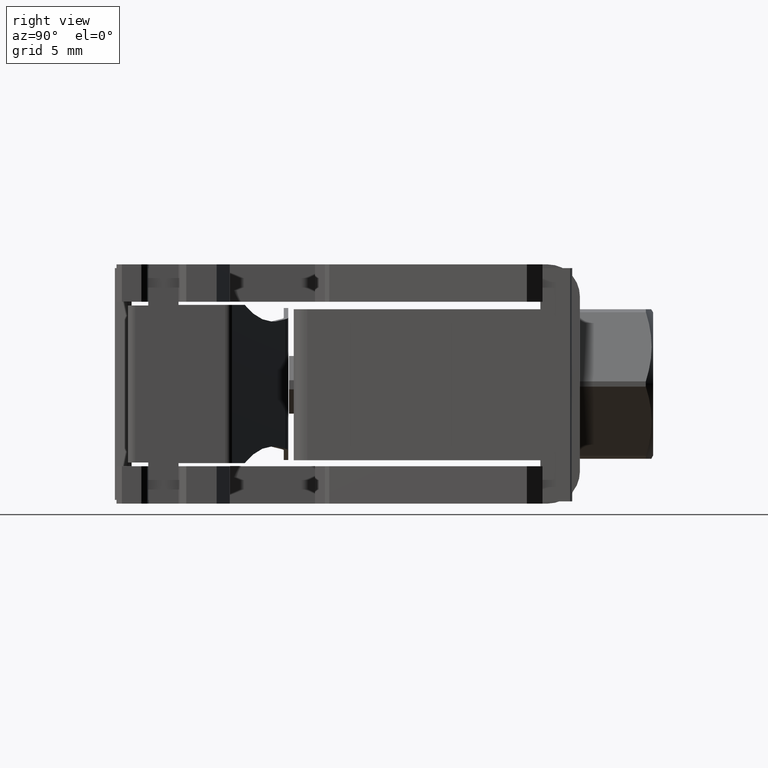
[diagram: clean part render]
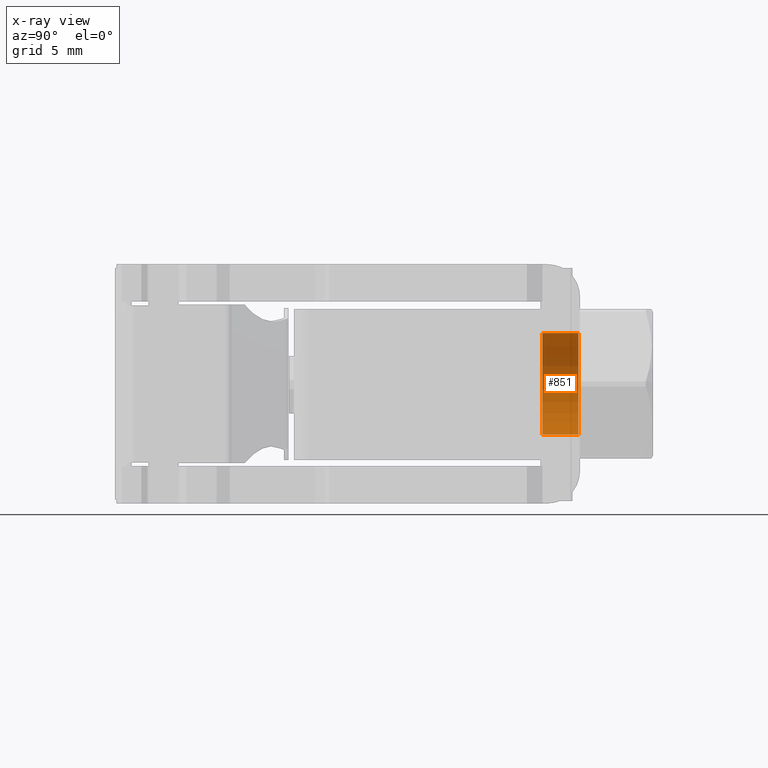
[diagram: x-ray — body ghosted, one internal face saturated and labeled with its STEP entity id]
A machine part, right view, then the same camera in x-ray: the body is ghosted and one INTERNAL B-rep face — a face not visible from any outside direction — is saturated and labeled: STEP entity #851.
In plain terms, the highlighted cylindrical surface (partial cylindrical patch) has radius 3.4 mm, axis along (-0, 1, -0).
Its self-contained STEP definition (entity closure, byte-faithful):
#305 = EDGE_LOOP ( 'NONE', ( #2885, #2872, #2876, #2926 ) ) ;
#851 = ADVANCED_FACE ( 'NONE', ( #6654 ), #6701, .F. ) ;
#2872 = ORIENTED_EDGE ( 'NONE', *, *, #5038, .T. ) ;
#2876 = ORIENTED_EDGE ( 'NONE', *, *, #4974, .T. ) ;
#2885 = ORIENTED_EDGE ( 'NONE', *, *, #5055, .T. ) ;
#2926 = ORIENTED_EDGE ( 'NONE', *, *, #5050, .F. ) ;
#3065 = VERTEX_POINT ( 'NONE', #10031 ) ;
#3110 = VERTEX_POINT ( 'NONE', #10011 ) ;
#3127 = VERTEX_POINT ( 'NONE', #10013 ) ;
#3128 = VERTEX_POINT ( 'NONE', #10027 ) ;
#4974 = EDGE_CURVE ( 'NONE', #3065, #3127, #9060, .T. ) ;
#5038 = EDGE_CURVE ( 'NONE', #3110, #3065, #11556, .T. ) ;
#5050 = EDGE_CURVE ( 'NONE', #3128, #3127, #11550, .T. ) ;
#5055 = EDGE_CURVE ( 'NONE', #3128, #3110, #9173, .T. ) ;
#6245 = AXIS2_PLACEMENT_3D ( 'NONE', #6695, #6717, #6691 ) ;
#6654 = FACE_OUTER_BOUND ( 'NONE', #305, .T. ) ;
#6691 = DIRECTION ( 'NONE',  ( 0.0000000000000000000, 0.0000000000000000000, 1.000000000000000000 ) ) ;
#6695 = CARTESIAN_POINT ( 'NONE',  ( 9.156278230129213800, 29.82833341090971000, 4.000000000000000000 ) ) ;
#6701 = CYLINDRICAL_SURFACE ( 'NONE', #6245, 3.399999999999997700 ) ;
#6717 = DIRECTION ( 'NONE',  ( -0.0000000000000000000, 1.000000000000000000, -0.0000000000000000000 ) ) ;
#9060 = CIRCLE ( 'NONE', #9061, 3.399999999999997700 ) ;
#9061 = AXIS2_PLACEMENT_3D ( 'NONE', #11243, #11229, #11258 ) ;
#9127 = VECTOR ( 'NONE', #11546, 1000.000000000000000 ) ;
#9143 = VECTOR ( 'NONE', #10682, 1000.000000000000000 ) ;
#9165 = AXIS2_PLACEMENT_3D ( 'NONE', #10672, #10681, #10684 ) ;
#9173 = CIRCLE ( 'NONE', #9165, 3.399999999999997700 ) ;
#10011 = CARTESIAN_POINT ( 'NONE',  ( 9.156278230129213800, 27.32833341090971000, 0.6000000000000024200 ) ) ;
#10013 = CARTESIAN_POINT ( 'NONE',  ( 9.156278230129213800, 29.72833341090971300, 7.399999999999997700 ) ) ;
#10027 = CARTESIAN_POINT ( 'NONE',  ( 9.156278230129213800, 27.32833341090971000, 7.399999999999997700 ) ) ;
#10031 = CARTESIAN_POINT ( 'NONE',  ( 9.156278230129213800, 29.72833341090971300, 0.6000000000000024200 ) ) ;
#10672 = CARTESIAN_POINT ( 'NONE',  ( 9.156278230129213800, 27.32833341090971000, 4.000000000000000000 ) ) ;
#10678 = CARTESIAN_POINT ( 'NONE',  ( 9.156278230129213800, 29.82833341090971000, 7.399999999999997700 ) ) ;
#10681 = DIRECTION ( 'NONE',  ( 0.0000000000000000000, -1.000000000000000000, 0.0000000000000000000 ) ) ;
#10682 = DIRECTION ( 'NONE',  ( -0.0000000000000000000, 1.000000000000000000, -0.0000000000000000000 ) ) ;
#10684 = DIRECTION ( 'NONE',  ( 0.0000000000000000000, 0.0000000000000000000, -1.000000000000000000 ) ) ;
#11229 = DIRECTION ( 'NONE',  ( -0.0000000000000000000, 1.000000000000000000, -0.0000000000000000000 ) ) ;
#11243 = CARTESIAN_POINT ( 'NONE',  ( 9.156278230129213800, 29.72833341090971300, 4.000000000000000000 ) ) ;
#11258 = DIRECTION ( 'NONE',  ( 0.0000000000000000000, 0.0000000000000000000, 1.000000000000000000 ) ) ;
#11546 = DIRECTION ( 'NONE',  ( -0.0000000000000000000, 1.000000000000000000, -0.0000000000000000000 ) ) ;
#11550 = LINE ( 'NONE', #10678, #9143 ) ;
#11556 = LINE ( 'NONE', #11563, #9127 ) ;
#11563 = CARTESIAN_POINT ( 'NONE',  ( 9.156278230129213800, 29.82833341090971000, 0.6000000000000024200 ) ) ;